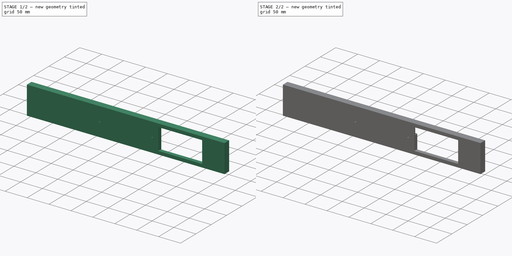
[diagram: build sequence overview — one tinted view per stage of 2, left to right]
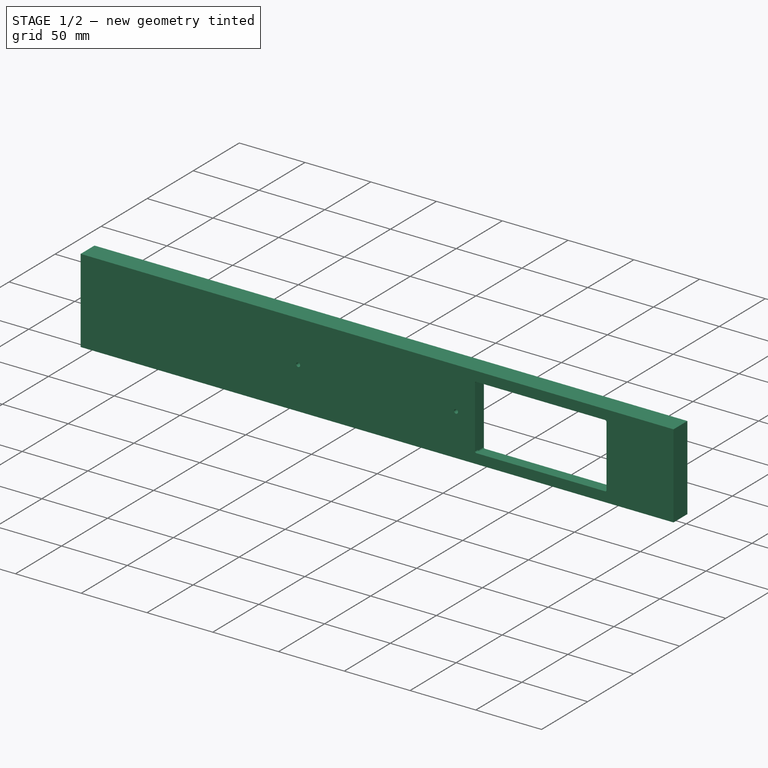
[diagram: stage 1 of 2 — iso view after this stage's code; geometry added in this stage tinted green]
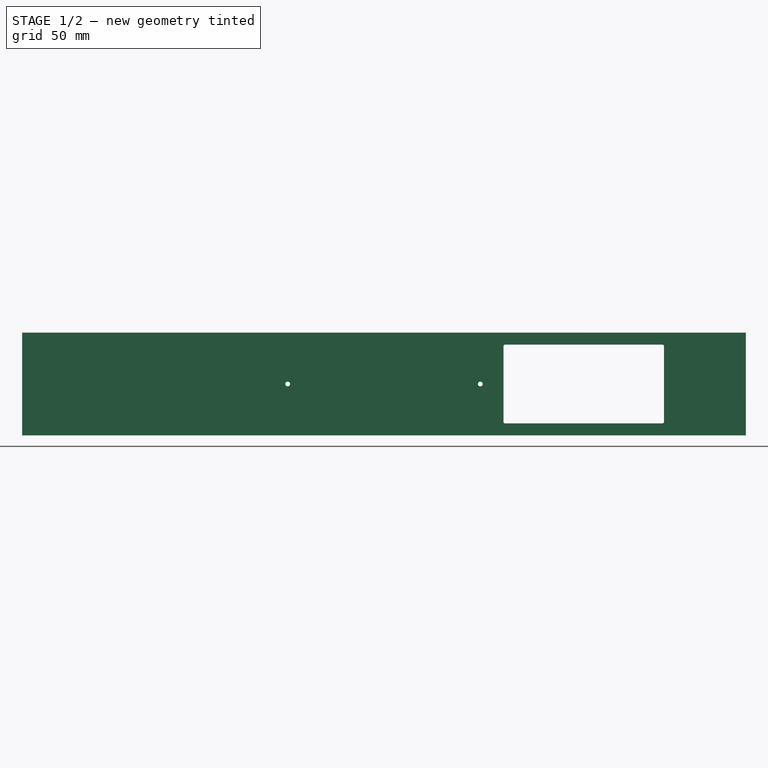
[diagram: stage 1 of 2 — front view after this stage's code; geometry added in this stage tinted green]
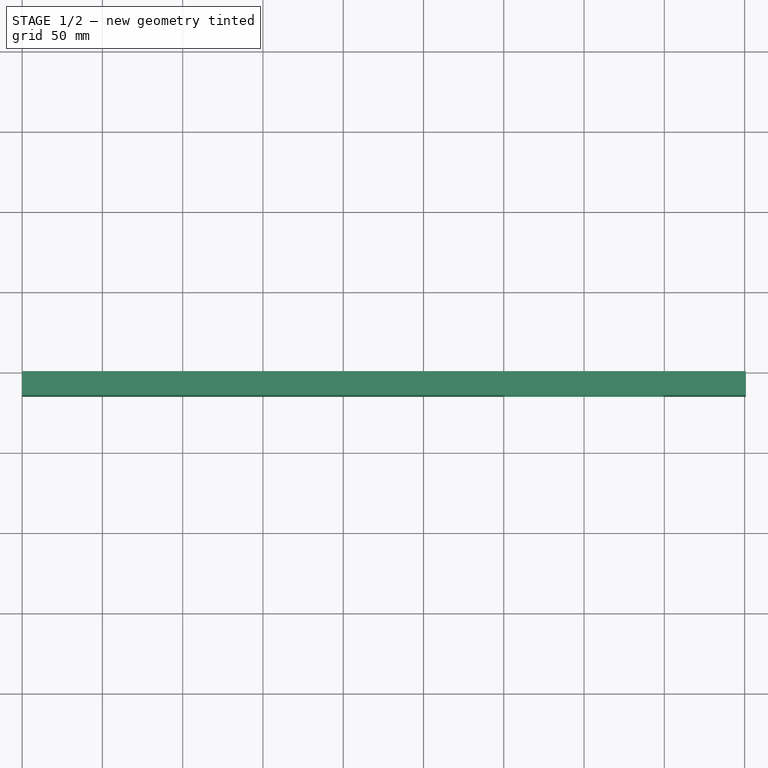
[diagram: stage 1 of 2 — top view after this stage's code; geometry added in this stage tinted green]
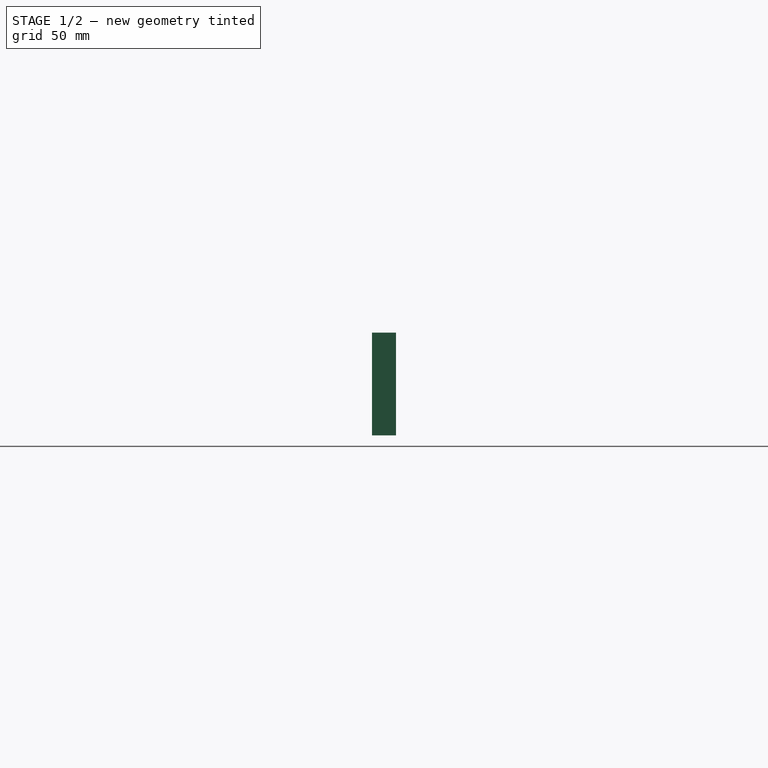
[diagram: stage 1 of 2 — right view after this stage's code; geometry added in this stage tinted green]
FCSTD DOCUMENT  (FreeCAD 0.19R24291 (Git))
Label: OuterFrontWall
License: All rights reserved
LicenseURL: http://en.wikipedia.org/wiki/All_rights_reserved
objects: Sketcher::SketchObject×4, PartDesign::CoordinateSystem×3, PartDesign::Pocket×2, App::FeaturePython×1, PartDesign::Pad×1, PartDesign::Plane×1, PartDesign::Hole×1, PartDesign::Body×1, App::Part×1
note: 17 computed .brp shape members not serialized (recipe doc carries the construction recipe); baked Part::Feature solids carry a one-line shape summary decoded from their .brp

FEATURE [PartDesign::CoordinateSystem] LCS_0
  AttacherType = Attacher::AttachEngine3D
  MapMode = 2
  Support = -> [X_Axis]
FEATURE [PartDesign::CoordinateSystem] LCS_0001
  AttacherType = Attacher::AttachEngine3D
  MapMode = 2
  Support = -> [X_Axis001]
FEATURE [Sketcher::SketchObject] Sketch
  FullyConstrained = true
  MapMode = 5
  Placement = pos=(0,0,0) rot=(1,0,0;1.5708rad)
  Support = -> [XZ_Plane001]
  expr: Constraints[48] = <<Attributes>>.LogicSpaceCornerRadius
  expr: Constraints[28] = <<Attributes>>.DrawerWidth_DW + <<Attributes>>.SideLengt * 2 - (<<Attributes>>.SideLengt + <<Attributes>>.WallThickness_WT * 2 + <<Attributes>>.LogicSpaceCornerRadius + <<Attributes>>.LogicSpaceWidth)
  expr: Constraints[25] = <<Attributes>>.DrawerHeight_DH - <<Attributes>>.WallThickness_WT / 2
  expr: Constraints[26] = <<Attributes>>.DrawerHeight_DH / 2
  expr: Constraints[9] = <<Attributes>>.DrawerWidth_DW + <<Attributes>>.SideLengt * 2
  expr: Constraints[27] = <<Attributes>>.DrawerWidth_DW + <<Attributes>>.SideLengt * 2 - (<<Attributes>>.SideLengt + <<Attributes>>.WallThickness_WT * 2 + <<Attributes>>.LogicSpaceCornerRadius)
  expr: Constraints[24] = <<Attributes>>.WallThickness_WT / 2
  expr: Constraints[19] = <<Attributes>>.ScrewPreWhole / 2
  expr: Constraints[49] = <<Attributes>>.HandelDimC - (<<Attributes>>.HandelDimC - <<Attributes>>.HandelDimA) / 2
  expr: Constraints[15] = (<<Attributes>>.DrawerWidth_DW + <<Attributes>>.SideLengt * 2) / 2
  expr: Constraints[10] = <<Attributes>>.DrawerHeight_DH
  sketch-geometry (20):
    g0: LineSegment StartX=0 StartY=0 StartZ=0 EndX=450.8 EndY=0 EndZ=0
    g1: LineSegment StartX=450.8 StartY=0 StartZ=0 EndX=450.8 EndY=64 EndZ=0
    g2: LineSegment StartX=450.8 StartY=64 StartZ=0 EndX=0 EndY=64 EndZ=0
    g3: LineSegment StartX=0 StartY=64 StartZ=0 EndX=0 EndY=0 EndZ=0
    g4: LineSegment StartX=165.4 StartY=32 StartZ=0 EndX=225.4 EndY=32 EndZ=0
    g5: LineSegment StartX=225.4 StartY=32 StartZ=0 EndX=285.4 EndY=32 EndZ=0
    g6: Circle CenterX=165.4 CenterY=32 CenterZ=0 NormalX=0 NormalY=0 NormalZ=1 AngleXU=0 Radius=1.5
    g7: Circle CenterX=285.4 CenterY=32 CenterZ=0 NormalX=0 NormalY=0 NormalZ=1 AngleXU=0 Radius=1.5
    g8: LineSegment StartX=300.8 StartY=56.5 StartZ=0 EndX=398.8 EndY=56.5 EndZ=0
    g9: LineSegment StartX=399.8 StartY=55.5 StartZ=0 EndX=399.8 EndY=8.5 EndZ=0
    g10: LineSegment StartX=398.8 StartY=7.5 StartZ=0 EndX=300.8 EndY=7.5 EndZ=0
    g11: LineSegment StartX=299.8 StartY=8.5 StartZ=0 EndX=299.8 EndY=55.5 EndZ=0
    g12: ArcOfCircle CenterX=300.8 CenterY=55.5 CenterZ=0 NormalX=0 NormalY=0 NormalZ=1 AngleXU=0 Radius=1 StartAngle=1.5708 EndAngle=3.14159
    g13: GeomPoint X=299.8 Y=56.5 Z=0
    g14: ArcOfCircle CenterX=398.8 CenterY=55.5 CenterZ=0 NormalX=0 NormalY=0 NormalZ=1 AngleXU=0 Radius=1 StartAngle=0 EndAngle=1.5708
    g15: GeomPoint X=399.8 Y=56.5 Z=0
    g16: ArcOfCircle CenterX=398.8 CenterY=8.5 CenterZ=0 NormalX=0 NormalY=0 NormalZ=1 AngleXU=0 Radius=1 StartAngle=4.71239 EndAngle=6.28319
    g17: GeomPoint X=399.8 Y=7.5 Z=0
    g18: ArcOfCircle CenterX=300.8 CenterY=8.5 CenterZ=0 NormalX=0 NormalY=0 NormalZ=1 AngleXU=0 Radius=1 StartAngle=3.14159 EndAngle=4.71239
    g19: GeomPoint X=299.8 Y=7.5 Z=0
  constraints (50):
    c: Coincident(g0,g1)
    c: Coincident(g1,g2)
    c: Coincident(g2,g3)
    c: Coincident(g3,g0)
    c: Horizontal(g0)
    c: Horizontal(g2)
    c: Vertical(g1)
    c: Vertical(g3)
    c: Coincident(g0,g-1)
    c: DistanceX(g0,g0) = 450.8
    c: DistanceY(g0,g2) = 64
    c: Horizontal(g4)
    c: Coincident(g4,g5)
    c: Horizontal(g5)
    c: Equal(g4,g5)
    c: DistanceX(g0,g4) = 225.4
    c: Coincident(g6,g4)
    c: Coincident(g7,g5)
    c: Equal(g6,g7)
    c: Radius(g6) = 1.5
    c: Horizontal(g8)
    c: Horizontal(g10)
    c: Vertical(g9)
    c: Vertical(g11)
    c: DistanceY(g0,g19) = 7.5
    c: DistanceY(g0,g13) = 56.5
    c: DistanceY(g0,g4) = 32
    c: DistanceX(g0,g17) = 399.8
    c: DistanceX(g0,g19) = 299.8
    c: PointOnObject(g13,g8)
    c: PointOnObject(g13,g11)
    c: Tangent(g8,g12) = 1.5708
    c: Tangent(g11,g12) = 1.5708
    c: PointOnObject(g15,g8)
    c: PointOnObject(g15,g9)
    c: Tangent(g8,g14) = 1.5708
    c: Tangent(g9,g14) = 1.5708
    c: PointOnObject(g17,g9)
    c: PointOnObject(g17,g10)
    c: Tangent(g9,g16) = 1.5708
    c: Tangent(g10,g16) = 1.5708
    c: PointOnObject(g19,g10)
    c: PointOnObject(g19,g11)
    c: Tangent(g10,g18) = 1.5708
    c: Tangent(g11,g18) = 1.5708
    c: Equal(g18,g12)
    c: Equal(g12,g14)
    c: Equal(g14,g16)
    c: Radius(g12) = 1
    c: DistanceX(g6,g7) = 120
FEATURE [App::FeaturePython] PropertyBag  label="Attributes"  # WARN: FeaturePython — macro-defined, semantics opaque (R4)
  BackWidth = 395.8
  Back_Space = 100
  BottomDepth = 365.8
  BottomWidth = 365.8
  Bottom_Height_BH = 4
  Bottom_Space_Height = 20
  Box_Tolerance = 0.2
  Boxes_Depth = 5
  Boxes_Height = 40
  Boxes_Width = 5
  CableChannelHight = 15
  CableChannelRadius = 2
  CustomPropertyGroups = shape | attributes
  DrawerDepth_DD = 465.8
  DrawerHeight_DH = 64
  DrawerWidth_DW = 410.8
  FrontWindowRecessedDepth = 3
  HandelDimA = 100
  HandelDimB = 30
  HandelDimC = 140
  HandelDimD = 70
  HandelDimE = 30
  InnerWallDepth = 358.3
  LogicBoardScrewHeadDiameter = 6
  LogicBoardScrewHeadHeight = 3
  LogicBoardStandoffHoleDiameter = 3
  LogicBoardStandoffHoleSideSpace = 6
  LogicSpaceCornerRadius = 1
  LogicSpaceWidth = 100
  ScrewPreWhole = 3
  ScrewPreWholeDepth = 20
  SideLengt = 20
  WallThickness_WT = 15
  expr: BottomDepth = Boxes_Depth * 70mm + WallThickness_WT + Box_Tolerance * (Boxes_Width - 1)
  expr: DrawerHeight_DH = Boxes_Height + Bottom_Height_BH + Bottom_Space_Height
  expr: BackWidth = DrawerWidth_DW - WallThickness_WT
  expr: DrawerWidth_DW = Boxes_Width * 70mm + WallThickness_WT * 4 + Box_Tolerance * (Boxes_Width - 1)
  expr: BottomWidth = Boxes_Width * 70mm + WallThickness_WT + Box_Tolerance * (Boxes_Width - 1)
  expr: DrawerDepth_DD = Boxes_Depth * 70mm + WallThickness_WT + Back_Space + Box_Tolerance * (Boxes_Width - 1)
  expr: InnerWallDepth = Boxes_Depth * 70mm + WallThickness_WT * 0.5 + Box_Tolerance * (Boxes_Width - 1)
FEATURE [PartDesign::Pad] Pad
  Direction = (1,1,1)
  Length = 15
  Length2 = 100
  Placement = pos=(0,0,0) rot=(1,0,0;1.5708rad)
  Profile = -> Sketch
  Type = 0
  expr: Length = <<Attributes>>.WallThickness_WT
FEATURE [PartDesign::Plane] DatumPlane
  Length = 60
  MapMode = 3
  Placement = pos=(0,0,0) rot=(1,0,0;1.5708rad)
  ResizeMode = 0
  Support = -> [LCS_0]
  Width = 60
FEATURE [Sketcher::SketchObject] Sketch001
  FullyConstrained = true
  MapMode = 5
  Placement = pos=(0,0,0) rot=(1,0,0;1.5708rad)
  Support = -> [DatumPlane]
  expr: Constraints[27] = <<Attributes>>.LogicSpaceCornerRadius
  expr: Constraints[7] = <<Attributes>>.DrawerWidth_DW + <<Attributes>>.SideLengt * 2 - (<<Attributes>>.SideLengt + <<Attributes>>.WallThickness_WT * 2 + <<Attributes>>.LogicSpaceCornerRadius + <<Attributes>>.LogicSpaceWidth) - <<Attributes>>.WallThickness_WT / 4
  expr: Constraints[6] = <<Attributes>>.DrawerWidth_DW + <<Attributes>>.SideLengt * 2 - (<<Attributes>>.SideLengt + <<Attributes>>.WallThickness_WT * 2 + <<Attributes>>.LogicSpaceCornerRadius) + <<Attributes>>.WallThickness_WT / 4
  expr: Constraints[5] = <<Attributes>>.DrawerHeight_DH - <<Attributes>>.WallThickness_WT / 4
  expr: Constraints[4] = <<Attributes>>.WallThickness_WT / 4
  sketch-geometry (12):
    g0: LineSegment StartX=297.05 StartY=60.25 StartZ=0 EndX=402.55 EndY=60.25 EndZ=0
    g1: LineSegment StartX=403.55 StartY=59.25 StartZ=0 EndX=403.55 EndY=4.75 EndZ=0
    g2: LineSegment StartX=402.55 StartY=3.75 StartZ=0 EndX=297.05 EndY=3.75 EndZ=0
    g3: LineSegment StartX=296.05 StartY=4.75 StartZ=0 EndX=296.05 EndY=59.25 EndZ=0
    g4: ArcOfCircle CenterX=297.05 CenterY=59.25 CenterZ=0 NormalX=0 NormalY=0 NormalZ=1 AngleXU=0 Radius=1 StartAngle=1.5708 EndAngle=3.14159
    g5: GeomPoint X=296.05 Y=60.25 Z=0
    g6: ArcOfCircle CenterX=402.55 CenterY=59.25 CenterZ=0 NormalX=0 NormalY=0 NormalZ=1 AngleXU=0 Radius=1 StartAngle=-2.93e-14 EndAngle=1.5708
    g7: GeomPoint X=403.55 Y=60.25 Z=0
    g8: ArcOfCircle CenterX=402.55 CenterY=4.75 CenterZ=0 NormalX=0 NormalY=0 NormalZ=1 AngleXU=0 Radius=1 StartAngle=4.71239 EndAngle=6.28319
    g9: GeomPoint X=403.55 Y=3.75 Z=0
    g10: ArcOfCircle CenterX=297.05 CenterY=4.75 CenterZ=0 NormalX=0 NormalY=0 NormalZ=1 AngleXU=0 Radius=1 StartAngle=3.14159 EndAngle=4.71239
    g11: GeomPoint X=296.05 Y=3.75 Z=0
  constraints (28):
    c: Horizontal(g0)
    c: Horizontal(g2)
    c: Vertical(g1)
    c: Vertical(g3)
    c: DistanceY(g-1,g11) = 3.75
    c: DistanceY(g-1,g5) = 60.25
    c: DistanceX(g-1,g9) = 403.55
    c: DistanceX(g-1,g11) = 296.05
    c: PointOnObject(g5,g0)
    c: PointOnObject(g5,g3)
    c: Tangent(g0,g4) = 1.5708
    c: Tangent(g3,g4) = 1.5708
    c: PointOnObject(g7,g0)
    c: PointOnObject(g7,g1)
    c: Tangent(g0,g6) = 1.5708
    c: Tangent(g1,g6) = 1.5708
    c: PointOnObject(g9,g1)
    c: PointOnObject(g9,g2)
    c: Tangent(g1,g8) = 1.5708
    c: Tangent(g2,g8) = 1.5708
    c: PointOnObject(g11,g2)
    c: PointOnObject(g11,g3)
    c: Tangent(g2,g10) = 1.5708
    c: Tangent(g3,g10) = 1.5708
    c: Equal(g10,g4)
    c: Equal(g4,g6)
    c: Equal(g6,g8)
    c: Radius(g6) = 1
FEATURE [PartDesign::Pocket] Pocket
  BaseFeature = -> Pad
  Length = 12
  Length2 = 100
  Placement = pos=(0,0,0) rot=(1,0,0;1.5708rad)
  Profile = -> Sketch001
  Reversed = true
  Type = 0
  expr: Length = <<Attributes>>.WallThickness_WT - <<Attributes>>.FrontWindowRecessedDepth
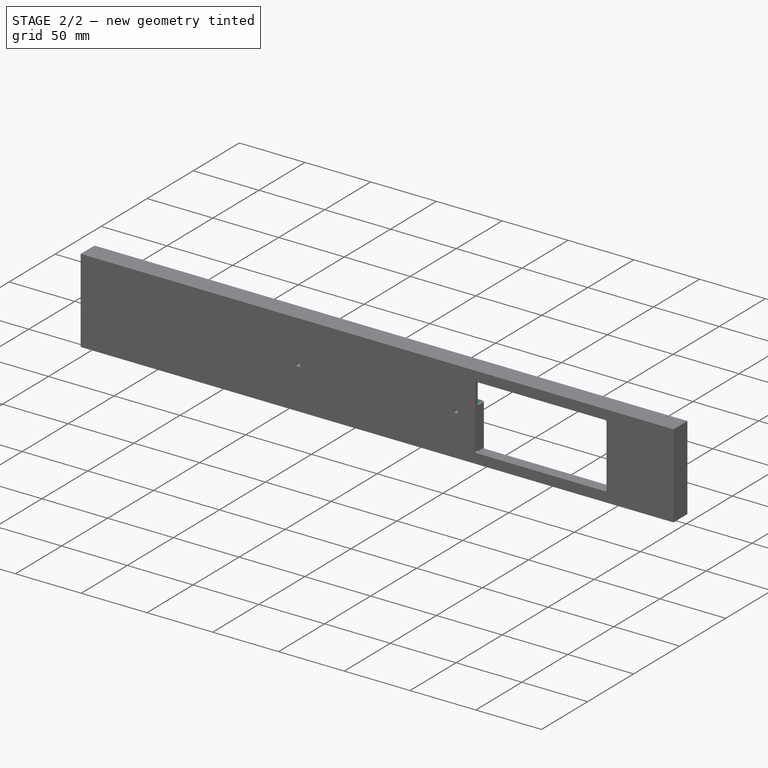
[diagram: stage 2 of 2 — iso view after this stage's code; geometry added in this stage tinted green]
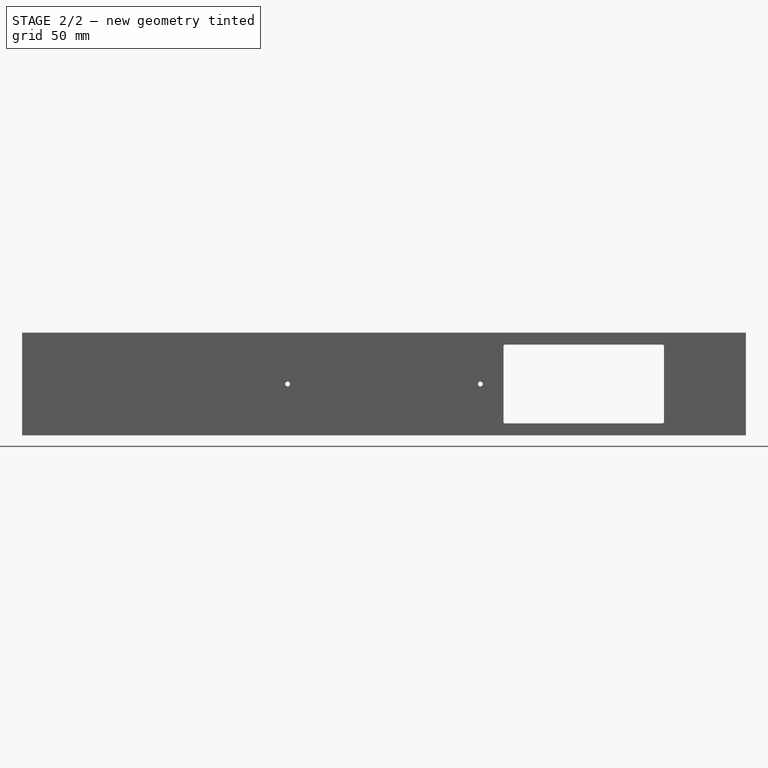
[diagram: stage 2 of 2 — front view after this stage's code; geometry added in this stage tinted green]
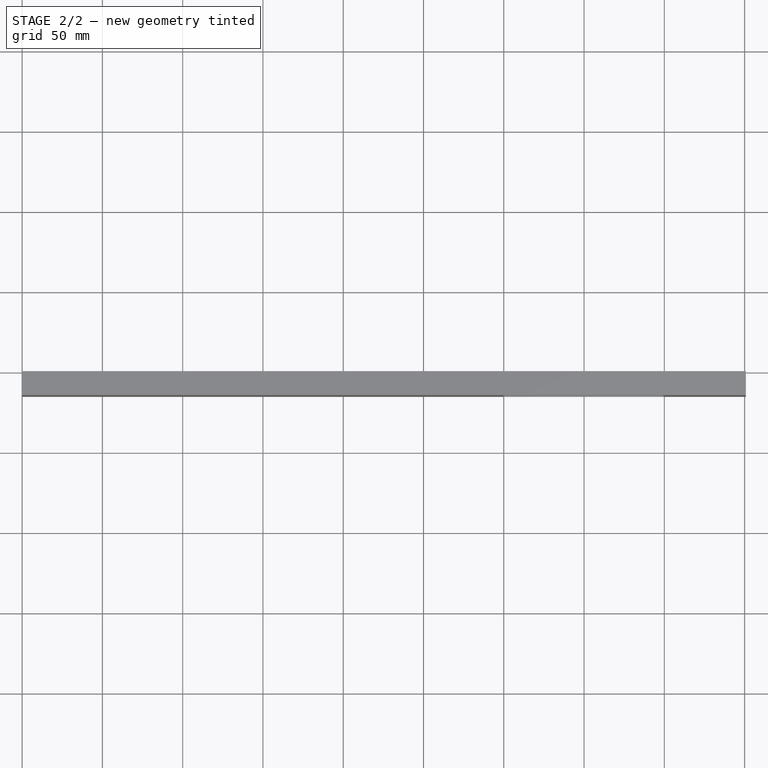
[diagram: stage 2 of 2 — top view after this stage's code; geometry added in this stage tinted green]
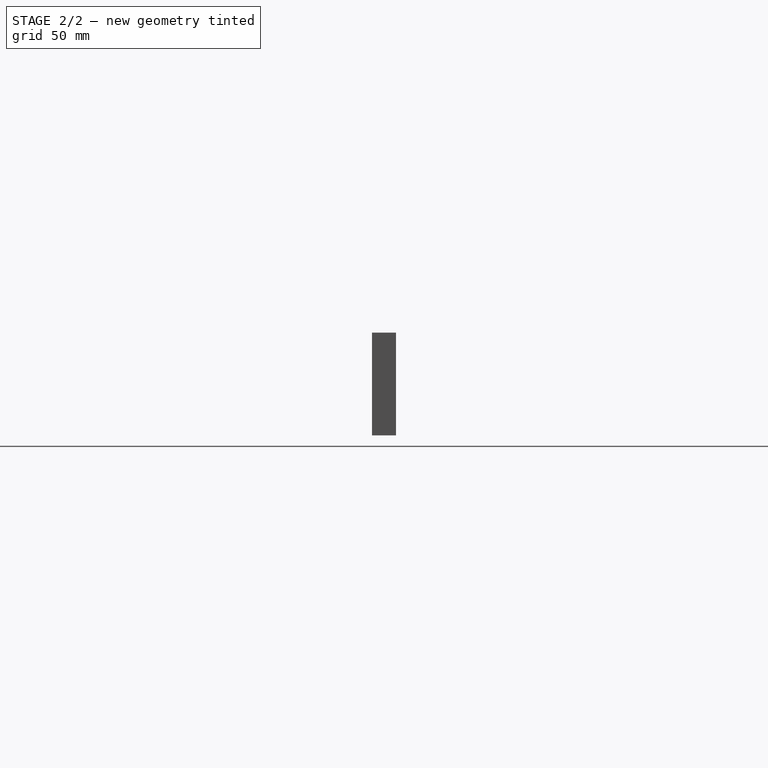
[diagram: stage 2 of 2 — right view after this stage's code; geometry added in this stage tinted green]
FEATURE [Sketcher::SketchObject] Sketch002
  FullyConstrained = true
  MapMode = 5
  Placement = pos=(0,0,0) rot=(1,0,0;1.5708rad)
  Support = -> [DatumPlane]
  expr: Constraints[49] = <<Attributes>>.LogicSpaceCornerRadius
  expr: Constraints[5] = <<Attributes>>.DrawerHeight_DH - <<Attributes>>.WallThickness_WT / 2 - (<<Attributes>>.DrawerHeight_DH - <<Attributes>>.WallThickness_WT - <<Attributes>>.Bottom_Space_Height - <<Attributes>>.Bottom_Height_BH) / 2 - <<Attributes>>.CableChannelHight / 2
  expr: Constraints[6] = <<Attributes>>.DrawerHeight_DH - <<Attributes>>.WallThickness_WT / 2 - (<<Attributes>>.DrawerHeight_DH - <<Attributes>>.WallThickness_WT - <<Attributes>>.Bottom_Space_Height - <<Attributes>>.Bottom_Height_BH) / 2 + <<Attributes>>.CableChannelHight / 2
  expr: Constraints[12] = <<Attributes>>.DrawerWidth_DW + <<Attributes>>.SideLengt
  expr: Constraints[4] = <<Attributes>>.DrawerWidth_DW + <<Attributes>>.SideLengt * 2 - (<<Attributes>>.SideLengt + <<Attributes>>.WallThickness_WT * 2 + <<Attributes>>.LogicSpaceCornerRadius + <<Attributes>>.LogicSpaceWidth) - <<Attributes>>.WallThickness_WT / 4
  expr: Constraints[3] = <<Attributes>>.SideLengt
  expr: Constraints[13] = <<Attributes>>.DrawerWidth_DW + <<Attributes>>.SideLengt - <<Attributes>>.WallThickness_WT * 2 - <<Attributes>>.LogicSpaceCornerRadius + <<Attributes>>.WallThickness_WT / 4
  sketch-geometry (24):
    g0: LineSegment StartX=21 StartY=51.5 StartZ=0 EndX=295.05 EndY=51.5 EndZ=0
    g1: LineSegment StartX=295.05 StartY=36.5 StartZ=0 EndX=21 EndY=36.5 EndZ=0
    g2: LineSegment StartX=20 StartY=37.5 StartZ=0 EndX=20 EndY=50.5 EndZ=0
    g3: LineSegment StartX=404.55 StartY=51.5 StartZ=0 EndX=429.8 EndY=51.5 EndZ=0
    g4: LineSegment StartX=430.8 StartY=50.5 StartZ=0 EndX=430.8 EndY=37.5 EndZ=0
    g5: LineSegment StartX=429.8 StartY=36.5 StartZ=0 EndX=404.55 EndY=36.5 EndZ=0
    g6: LineSegment StartX=296.05 StartY=52.5 StartZ=0 EndX=403.55 EndY=52.5 EndZ=0
    g7: LineSegment StartX=296.05 StartY=35.5 StartZ=0 EndX=403.55 EndY=35.5 EndZ=0
    g8: ArcOfCircle CenterX=295.05 CenterY=52.5 CenterZ=0 NormalX=0 NormalY=0 NormalZ=1 AngleXU=0 Radius=1 StartAngle=4.71239 EndAngle=6.28319
    g9: GeomPoint X=296.05 Y=51.5 Z=0
    g10: ArcOfCircle CenterX=404.55 CenterY=52.5 CenterZ=0 NormalX=0 NormalY=0 NormalZ=1 AngleXU=0 Radius=1 StartAngle=3.14159 EndAngle=4.71239
    g11: GeomPoint X=403.55 Y=51.5 Z=0
    g12: ArcOfCircle CenterX=404.55 CenterY=35.5 CenterZ=0 NormalX=0 NormalY=0 NormalZ=1 AngleXU=0 Radius=1 StartAngle=1.5708 EndAngle=3.14159
    g13: GeomPoint X=403.55 Y=36.5 Z=0
    g14: ArcOfCircle CenterX=295.05 CenterY=35.5 CenterZ=0 NormalX=0 NormalY=0 NormalZ=1 AngleXU=0 Radius=1 StartAngle=1.42e-14 EndAngle=1.5708
    g15: GeomPoint X=296.05 Y=36.5 Z=0
    g16: ArcOfCircle CenterX=429.8 CenterY=50.5 CenterZ=0 NormalX=0 NormalY=0 NormalZ=1 AngleXU=0 Radius=1 StartAngle=4e-16 EndAngle=1.5708
    g17: GeomPoint X=430.8 Y=51.5 Z=0
    g18: ArcOfCircle CenterX=429.8 CenterY=37.5 CenterZ=0 NormalX=0 NormalY=0 NormalZ=1 AngleXU=0 Radius=1 StartAngle=4.71239 EndAngle=6.28319
    g19: GeomPoint X=430.8 Y=36.5 Z=0
    g20: ArcOfCircle CenterX=21 CenterY=50.5 CenterZ=0 NormalX=0 NormalY=0 NormalZ=1 AngleXU=0 Radius=1 StartAngle=1.5708 EndAngle=3.14159
    g21: GeomPoint X=20 Y=51.5 Z=0
    g22: ArcOfCircle CenterX=21 CenterY=37.5 CenterZ=0 NormalX=0 NormalY=0 NormalZ=1 AngleXU=0 Radius=1 StartAngle=3.14159 EndAngle=4.71239
    g23: GeomPoint X=20 Y=36.5 Z=0
  constraints (60):
    c: Horizontal(g0)
    c: Horizontal(g1)
    c: Vertical(g2)
    c: DistanceX(g-1,g23) = 20
    c: DistanceX(g-1,g15) = 296.05
    c: DistanceY(g-1,g23) = 36.5
    c: DistanceY(g-1,g21) = 51.5
    c: Horizontal(g3)
    c: Horizontal(g5)
    c: Vertical(g4)
    c: Horizontal(g11,g9)
    c: Horizontal(g13,g15)
    c: DistanceX(g-1,g17) = 430.8
    c: DistanceX(g-1,g13) = 403.55
    c: Vertical(g9,g15)
    c: Vertical(g11,g13)
    c: Horizontal(g6)
    c: Horizontal(g7)
    c: PointOnObject(g9,g0)
    c: Tangent(g0,g8) = -1.5708
    c: PointOnObject(g11,g3)
    c: Tangent(g3,g10) = -1.5708
    c: PointOnObject(g13,g5)
    c: Tangent(g5,g12) = -1.5708
    c: PointOnObject(g15,g1)
    c: Tangent(g1,g14) = -1.5708
    c: PointOnObject(g17,g3)
    c: PointOnObject(g17,g4)
    c: Tangent(g3,g16) = 1.5708
    c: Tangent(g4,g16) = 1.5708
    c: PointOnObject(g19,g4)
    c: PointOnObject(g19,g5)
    c: Tangent(g4,g18) = 1.5708
    c: Tangent(g5,g18) = 1.5708
    c: PointOnObject(g21,g0)
    c: PointOnObject(g21,g2)
    c: Tangent(g0,g20) = 1.5708
    c: Tangent(g2,g20) = 1.5708
    c: PointOnObject(g23,g1)
    c: PointOnObject(g23,g2)
    c: Tangent(g1,g22) = 1.5708
    c: Tangent(g2,g22) = 1.5708
    c: Equal(g22,g20)
    c: Equal(g20,g8)
    c: Equal(g8,g14)
    c: Equal(g14,g10)
    c: Equal(g10,g12)
    c: Equal(g12,g16)
    c: Equal(g16,g18)
    c: Radius(g10) = 1
    c: Horizontal(g12,g12)
    c: Horizontal(g10,g10)
    c: Coincident(g6,g10)
    c: Coincident(g8,g6)
    c: Vertical(g9,g6)
    c: Vertical(g11,g6)
    c: Vertical(g13,g12)
    c: Coincident(g12,g7)
    c: Coincident(g14,g7)
    c: Vertical(g7,g15)
FEATURE [PartDesign::Pocket] Pocket001
  BaseFeature = -> Pocket
  Length = 7.5
  Length2 = 100
  Placement = pos=(0,0,0) rot=(1,0,0;1.5708rad)
  Profile = -> Sketch002
  Reversed = true
  Type = 0
  expr: Length = <<Attributes>>.WallThickness_WT / 2
FEATURE [Sketcher::SketchObject] Sketch003
  FullyConstrained = true
  MapMode = 5
  Placement = pos=(0,0,0) rot=(1,0,0;1.5708rad)
  Support = -> [DatumPlane]
  expr: Constraints[25] = <<Attributes>>.ScrewPreWhole / 2
  expr: Constraints[12] = <<Attributes>>.DrawerHeight_DH - <<Attributes>>.WallThickness_WT / 2
  expr: Constraints[11] = <<Attributes>>.DrawerHeight_DH - <<Attributes>>.WallThickness_WT - <<Attributes>>.Bottom_Space_Height - <<Attributes>>.Bottom_Height_BH
  expr: Constraints[13] = <<Attributes>>.DrawerWidth_DW + <<Attributes>>.SideLengt * 1.5
  expr: Constraints[7] = <<Attributes>>.Bottom_Space_Height / 2
  expr: Constraints[6] = <<Attributes>>.SideLengt / 2
  sketch-geometry (10):
    g0: LineSegment StartX=10 StartY=56.5 StartZ=0 EndX=10 EndY=31.5 EndZ=0
    g1: LineSegment StartX=10 StartY=31.5 StartZ=0 EndX=10 EndY=10 EndZ=0
    g2: LineSegment StartX=440.8 StartY=56.5 StartZ=0 EndX=440.8 EndY=31.5 EndZ=0
    g3: LineSegment StartX=440.8 StartY=31.5 StartZ=0 EndX=440.8 EndY=10 EndZ=0
    g4: Circle CenterX=10 CenterY=56.5 CenterZ=0 NormalX=0 NormalY=0 NormalZ=1 AngleXU=0 Radius=1.5
    g5: Circle CenterX=10 CenterY=31.5 CenterZ=0 NormalX=0 NormalY=0 NormalZ=1 AngleXU=0 Radius=1.5
    g6: Circle CenterX=10 CenterY=10 CenterZ=0 NormalX=0 NormalY=0 NormalZ=1 AngleXU=0 Radius=1.5
    g7: Circle CenterX=440.8 CenterY=56.5 CenterZ=0 NormalX=0 NormalY=0 NormalZ=1 AngleXU=0 Radius=1.5
    g8: Circle CenterX=440.8 CenterY=31.5 CenterZ=0 NormalX=0 NormalY=0 NormalZ=1 AngleXU=0 Radius=1.5
    g9: Circle CenterX=440.8 CenterY=10 CenterZ=0 NormalX=0 NormalY=0 NormalZ=1 AngleXU=0 Radius=1.5
  constraints (26):
    c: Vertical(g0)
    c: Coincident(g0,g1)
    c: Vertical(g1)
    c: Vertical(g2)
    c: Coincident(g2,g3)
    c: Vertical(g3)
    c: DistanceX(g-1,g1) = 10
    c: DistanceY(g-1,g1) = 10
    c: Horizontal(g1,g3)
    c: Equal(g3,g1)
    c: Equal(g0,g2)
    c: Distance(g0) = 25
    c: DistanceY(g-1,g0) = 56.5
    c: DistanceX(g-1,g3) = 440.8
    c: Coincident(g4,g0)
    c: Coincident(g5,g0)
    c: Coincident(g6,g1)
    c: Coincident(g7,g2)
    c: Coincident(g8,g2)
    c: Coincident(g9,g3)
    c: Equal(g4,g5)
    c: Equal(g5,g6)
    c: Equal(g6,g7)
    c: Equal(g7,g8)
    c: Equal(g8,g9)
    c: Radius(g4) = 1.5
FEATURE [PartDesign::Hole] Hole
  BaseFeature = -> Pocket001
  Depth = 7.5
  DepthType = 0
  Diameter = 3
  DrillForDepth = false
  DrillPoint = 1
  DrillPointAngle = 118
  HoleCutCountersinkAngle = 90
  HoleCutCustomValues = false
  HoleCutDepth = 0
  HoleCutDiameter = 6.1
  HoleCutType = 0
  ModelActualThread = false
  Placement = pos=(0,0,0) rot=(1,0,0;1.5708rad)
  Profile = -> Sketch003
  Reversed = true
  Tapered = false
  TaperedAngle = 90
  ThreadAngle = 0
  ThreadClass = 0
  ThreadCutOffInner = 0
  ThreadCutOffOuter = 0
  ThreadDirection = 0
  ThreadFit = 0
  ThreadPitch = 0
  ThreadSize = 0
  ThreadType = 0
  Threaded = false
  expr: Depth = <<Attributes>>.WallThickness_WT / 2
  expr: Diameter = <<Attributes>>.ScrewPreWhole
FEATURE [PartDesign::Body] OuterFrontWall001
  Group = -> [LCS_0001,Sketch,Pad,DatumPlane,Sketch001,Pocket,Sketch002,Pocket001,Sketch003,Hole]
  Origin = -> Origin001
  Tip = -> Hole
FEATURE [PartDesign::CoordinateSystem] OuterFrontWall_FrontWindow  label="OuterFrontWall-FrontWindow"
  AttacherType = Attacher::AttachEngine3D
  AttachmentOffset = pos=(349.8,-15,32) rot=(0,0,1;0rad)
  MapMode = 2
  Placement = pos=(349.8,-15,32) rot=(0,0,1;0rad)
  Support = -> [LCS_0]
  expr: .AttachmentOffset.Base.z = <<Attributes>>.DrawerHeight_DH / 2
  expr: .AttachmentOffset.Base.y = -<<Attributes>>.WallThickness_WT
  expr: .AttachmentOffset.Base.x = <<Attributes>>.DrawerWidth_DW + <<Attributes>>.SideLengt * 2 - (<<Attributes>>.SideLengt + <<Attributes>>.WallThickness_WT * 2 + <<Attributes>>.LogicSpaceCornerRadius + <<Attributes>>.LogicSpaceWidth / 2)
FEATURE [App::Part] OuterFrontWall
  Group = -> [LCS_0,OuterFrontWall001,PropertyBag,OuterFrontWall_FrontWindow]
  Origin = -> Origin
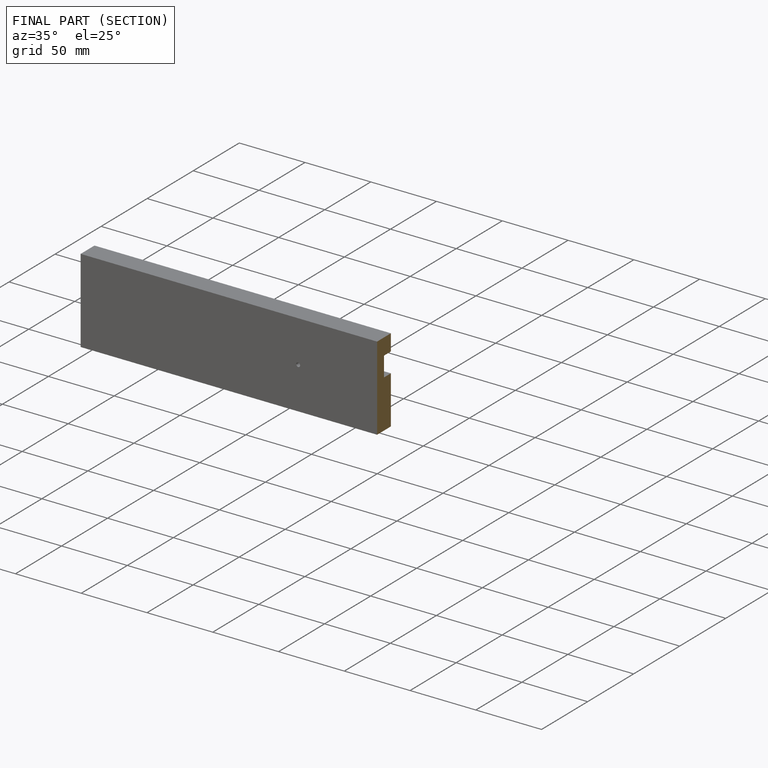
[diagram: finished part — half-section view (interior)]
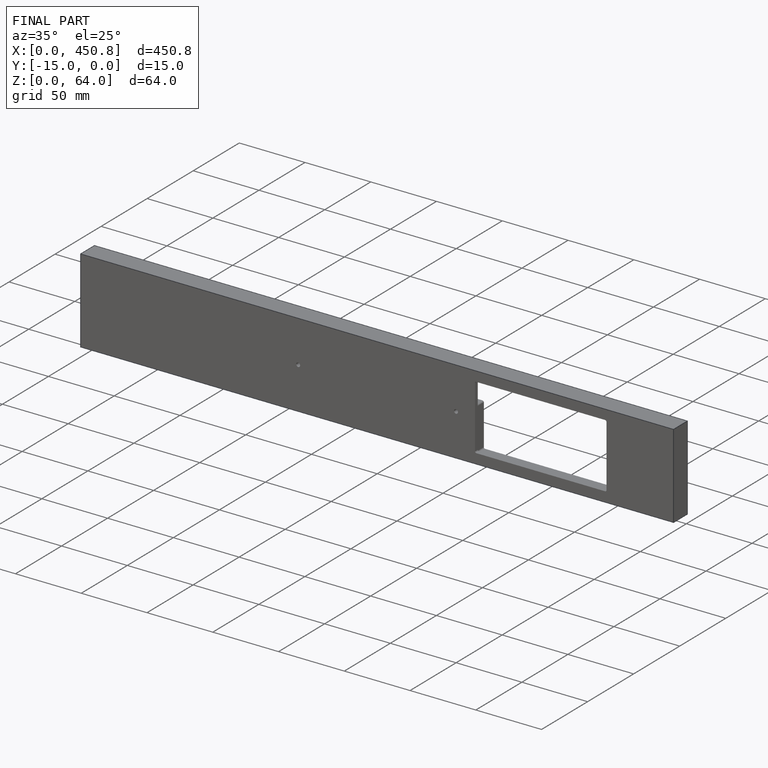
[diagram: finished part — iso view with bounding-box wireframe]
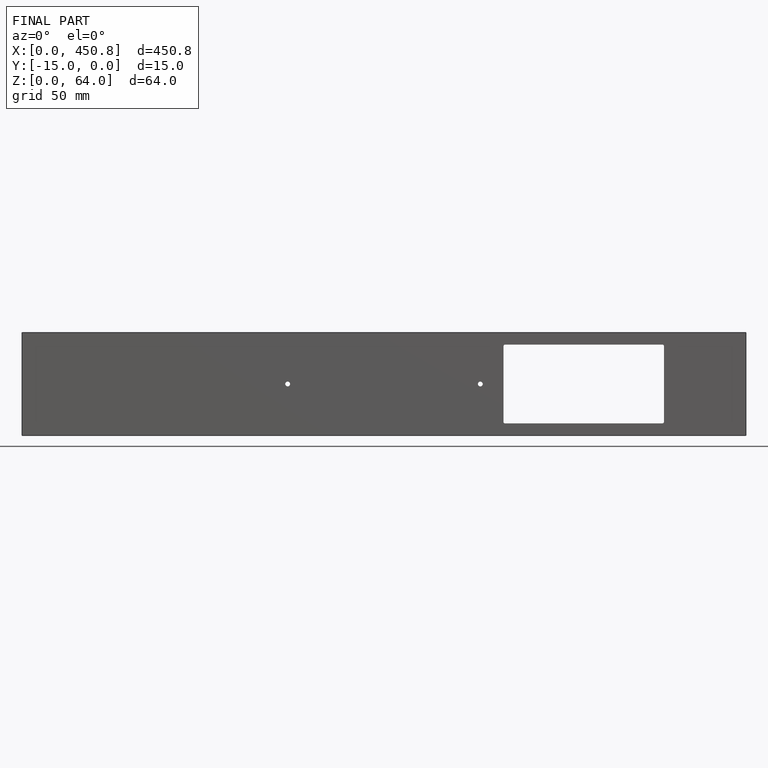
[diagram: finished part — front view with bounding-box wireframe]
